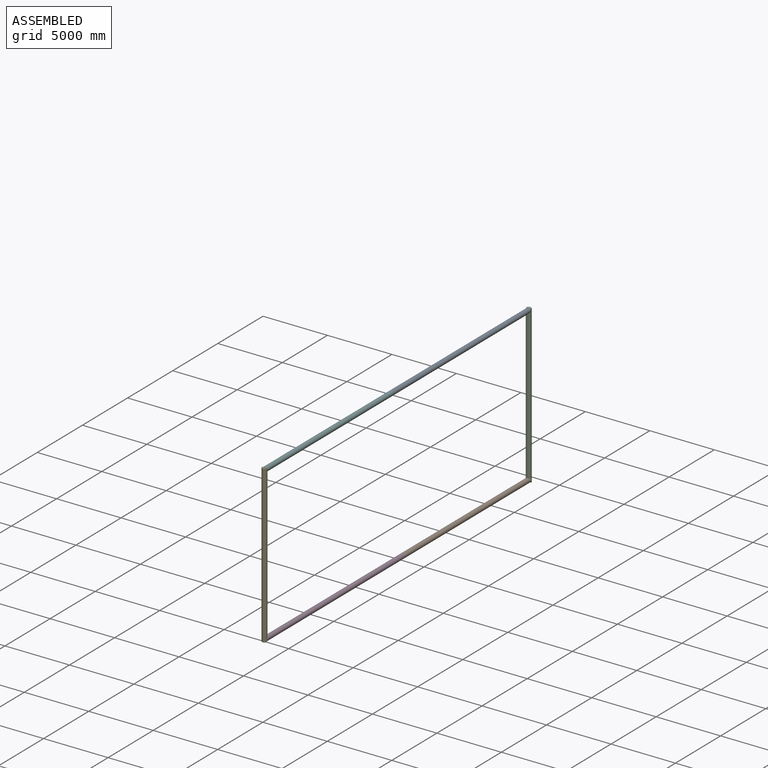
[diagram: assembled view]
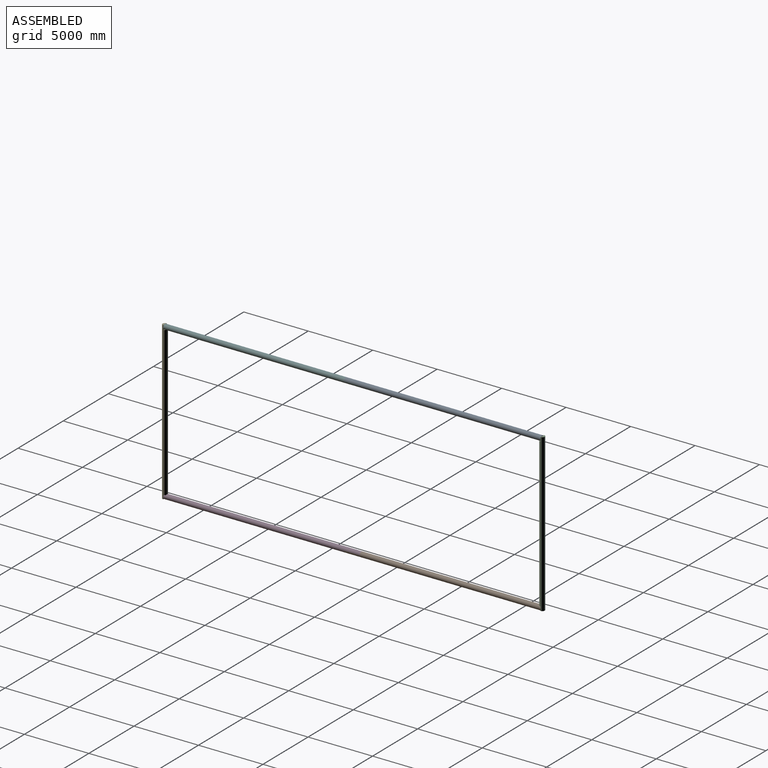
[diagram: assembled view, second angle]
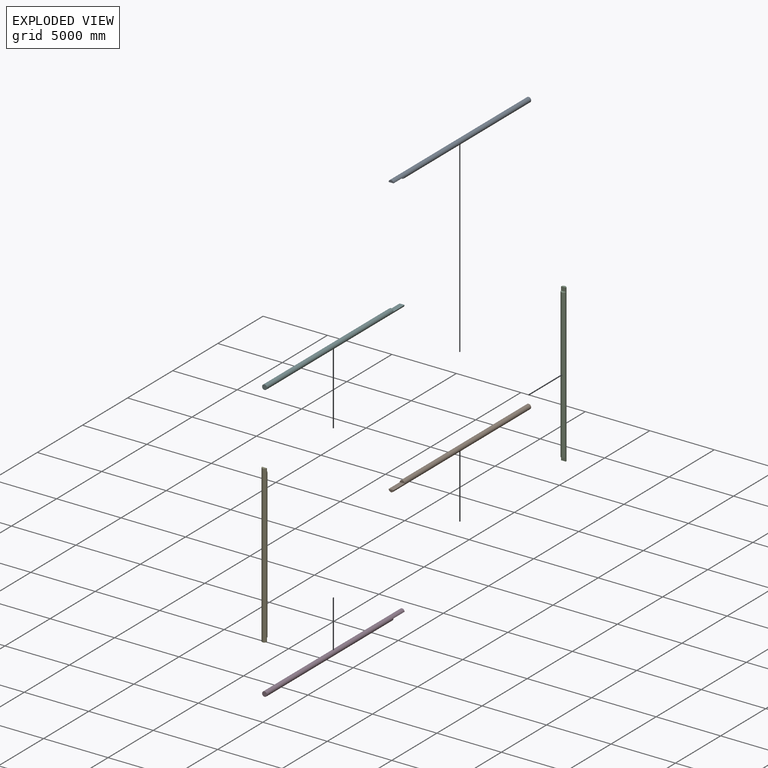
[diagram: exploded view]
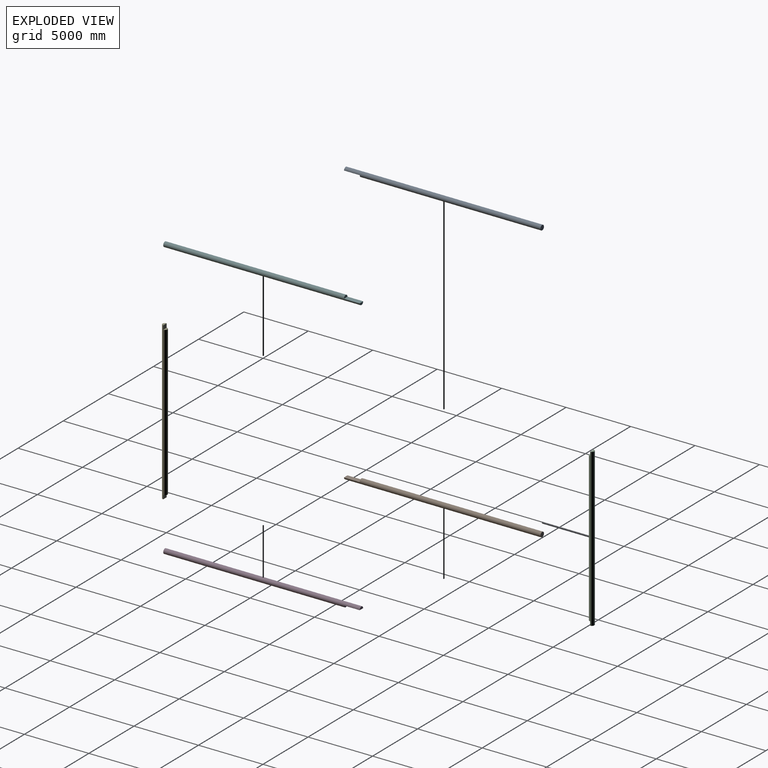
[diagram: exploded view, second angle]
ASSEMBLY  parts=6 mates=4
PART A: 5 faces, bbox 381x15240x381 mm
  f0: cylinder r=190.5mm len=15240mm, axis (0,1,0), area 17511810.5mm2, adj f1,f2,f3,f4
  f1: plane 381x381mm, normal (0,-1,0), area 114009.2mm2, adj f0
  f2: plane 381x190.5mm, normal (0,1,0), area 57004.6mm2, adj f0,f4
  f3: plane 381x190.5mm, normal (0,1,0), area 57004.6mm2, adj f0,f4
  f4: plane 1219.2x381mm, normal (0,0,-1), area 464515.2mm2, adj f0,f2,f3
PART B: same geometry as A
PART C: 7 faces, bbox 381x12192x381 mm
  f0: cylinder r=190.5mm len=12192mm, axis (0,1,0), area 14228346mm2, adj f1,f2,f3,f4,f5,f6
  f1: plane 381x190.5mm, normal (0,-1,0), area 57004.6mm2, adj f0,f6
  f2: plane 381x190.5mm, normal (0,1,0), area 57004.6mm2, adj f0,f4
  f3: plane 381x190.5mm, normal (0,1,0), area 57004.6mm2, adj f0,f4
  f4: plane 381x304.8mm, normal (0,0,-1), area 116128.8mm2, adj f0,f2,f3
  f5: plane 381x190.5mm, normal (0,-1,0), area 57004.6mm2, adj f0,f6
  f6: plane 381x304.8mm, normal (0,0,-1), area 116128.8mm2, adj f0,f1,f5
PART D: same geometry as A
PART E: same geometry as C
PART F: same geometry as A
PLACE A rot(axis=(0,0,1),180deg) t=(-6507.31,1364.38,4476.49)mm
PLACE B rot(axis=(1,0,0),180deg) t=(-6507.31,1364.38,-7410.71)mm
PLACE C rot(axis=(0,0.71,0.71),180deg) t=(-6507.31,16604.38,4628.89)mm
PLACE D t=(-6507.31,2583.58,-7410.71)mm
PLACE E rot(axis=(1,0,0),90deg) t=(-6507.31,-12656.42,4628.89)mm
PLACE F rot(axis=(0,1,0),180deg) t=(-6507.31,2583.58,4476.49)mm
MATE fastened C.f6 <-> B.f0  axis (0,-1,0) through (-6507.31,16604.38,-7410.71)mm
MATE fastened E.f6 <-> D.f0  axis (0,1,0) through (-6507.31,-12656.42,-7410.71)mm
MATE fastened A.f4 <-> F.f4  axis (0,0,-1) through (-6507.31,1973.98,4476.49)mm
MATE fastened B.f4 <-> D.f4  axis (0,0,1) through (-6507.31,1973.98,-7410.71)mm
